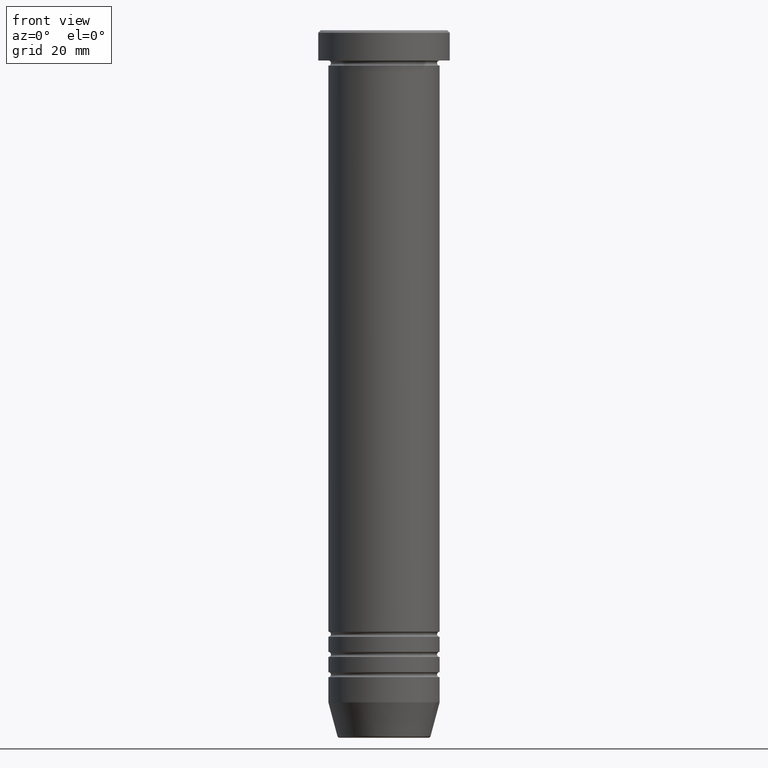
[diagram: clean part render]
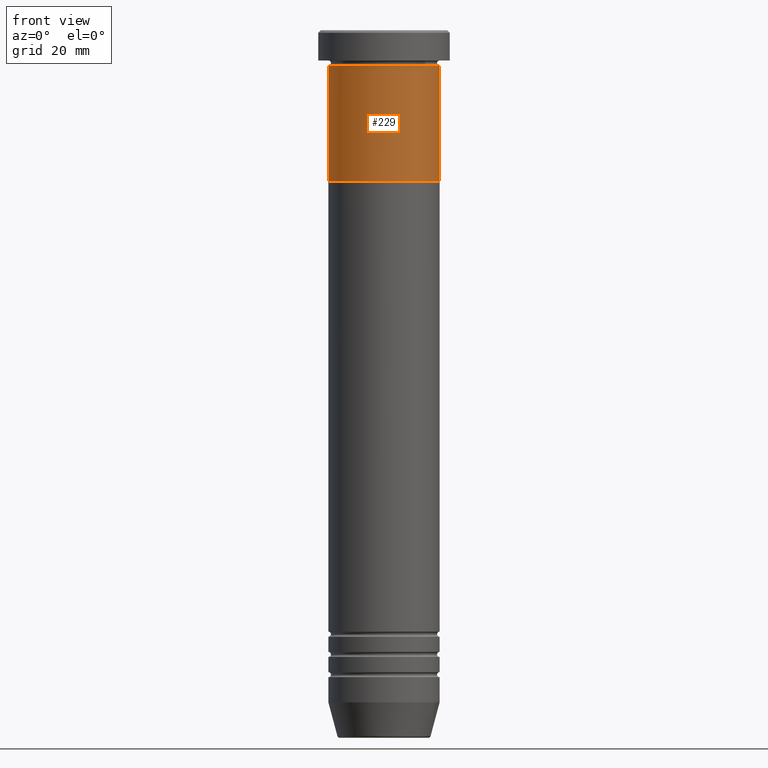
[diagram: same view with one face highlighted and labeled with its STEP entity id]
A machine part, front view. The second image highlights one B-rep face of the part: STEP entity #229.
In plain terms, the highlighted cylindrical surface (partial cylindrical patch) has radius 11 mm, axis along (-0, -0, 1).
Its self-contained STEP definition (entity closure, byte-faithful):
#12 = CARTESIAN_POINT ( 'NONE',  ( 0.000000000000000000, 0.000000000000000000, -30.00000000000000000 ) ) ;
#62 = CIRCLE ( 'NONE', #619, 11.00000000000000000 ) ;
#94 = CIRCLE ( 'NONE', #709, 11.00000000000000000 ) ;
#107 = ORIENTED_EDGE ( 'NONE', *, *, #202, .T. ) ;
#147 = CARTESIAN_POINT ( 'NONE',  ( 11.00000000000000000, 0.000000000000000000, -30.00000000000000000 ) ) ;
#162 = CYLINDRICAL_SURFACE ( 'NONE', #931, 11.00000000000000000 ) ;
#196 = EDGE_CURVE ( 'NONE', #213, #608, #644, .T. ) ;
#202 = EDGE_CURVE ( 'NONE', #213, #588, #62, .T. ) ;
#208 = EDGE_CURVE ( 'NONE', #588, #778, #735, .T. ) ;
#213 = VERTEX_POINT ( 'NONE', #587 ) ;
#229 = ADVANCED_FACE ( 'NONE', ( #329 ), #162, .T. ) ;
#242 = CARTESIAN_POINT ( 'NONE',  ( -11.00000000000000000, 1.347111479062088405E-15, -6.999999999999999112 ) ) ;
#259 = VECTOR ( 'NONE', #563, 1000.000000000000000 ) ;
#269 = ORIENTED_EDGE ( 'NONE', *, *, #471, .F. ) ;
#303 = DIRECTION ( 'NONE',  ( 1.000000000000000000, 0.000000000000000000, 0.000000000000000000 ) ) ;
#317 = ORIENTED_EDGE ( 'NONE', *, *, #208, .T. ) ;
#329 = FACE_OUTER_BOUND ( 'NONE', #511, .T. ) ;
#395 = DIRECTION ( 'NONE',  ( -0.000000000000000000, -0.000000000000000000, 1.000000000000000000 ) ) ;
#398 = DIRECTION ( 'NONE',  ( -0.000000000000000000, -0.000000000000000000, 1.000000000000000000 ) ) ;
#471 = EDGE_CURVE ( 'NONE', #608, #778, #94, .T. ) ;
#482 = CARTESIAN_POINT ( 'NONE',  ( 0.000000000000000000, 0.000000000000000000, 0.000000000000000000 ) ) ;
#511 = EDGE_LOOP ( 'NONE', ( #561, #107, #317, #269 ) ) ;
#561 = ORIENTED_EDGE ( 'NONE', *, *, #196, .F. ) ;
#563 = DIRECTION ( 'NONE',  ( -0.000000000000000000, -0.000000000000000000, 1.000000000000000000 ) ) ;
#575 = DIRECTION ( 'NONE',  ( 1.000000000000000000, 0.000000000000000000, 0.000000000000000000 ) ) ;
#587 = CARTESIAN_POINT ( 'NONE',  ( -11.00000000000000000, 1.347111479062088405E-15, -30.00000000000000000 ) ) ;
#588 = VERTEX_POINT ( 'NONE', #147 ) ;
#608 = VERTEX_POINT ( 'NONE', #242 ) ;
#619 = AXIS2_PLACEMENT_3D ( 'NONE', #12, #395, #575 ) ;
#644 = LINE ( 'NONE', #919, #914 ) ;
#682 = CARTESIAN_POINT ( 'NONE',  ( 11.00000000000000000, 0.000000000000000000, -6.999999999999999112 ) ) ;
#709 = AXIS2_PLACEMENT_3D ( 'NONE', #881, #1051, #303 ) ;
#735 = LINE ( 'NONE', #978, #259 ) ;
#778 = VERTEX_POINT ( 'NONE', #682 ) ;
#808 = DIRECTION ( 'NONE',  ( 1.000000000000000000, 0.000000000000000000, 0.000000000000000000 ) ) ;
#881 = CARTESIAN_POINT ( 'NONE',  ( 0.000000000000000000, 0.000000000000000000, -6.999999999999999112 ) ) ;
#914 = VECTOR ( 'NONE', #398, 1000.000000000000000 ) ;
#919 = CARTESIAN_POINT ( 'NONE',  ( -11.00000000000000000, 1.347111479062088405E-15, 0.000000000000000000 ) ) ;
#931 = AXIS2_PLACEMENT_3D ( 'NONE', #482, #1061, #808 ) ;
#978 = CARTESIAN_POINT ( 'NONE',  ( 11.00000000000000000, 0.000000000000000000, 0.000000000000000000 ) ) ;
#1051 = DIRECTION ( 'NONE',  ( -0.000000000000000000, -0.000000000000000000, 1.000000000000000000 ) ) ;
#1061 = DIRECTION ( 'NONE',  ( -0.000000000000000000, -0.000000000000000000, 1.000000000000000000 ) ) ;